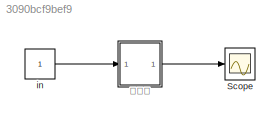
MODEL slx_3090bcf9bef9
KIND model
CONFIG AbsTol = auto
CONFIG EnableMultiTasking = off
CONFIG FixedStep = auto
CONFIG MaxStep = auto
CONFIG MinStep = auto
CONFIG RelTol = 1e-3
CONFIG SampleTimeConstraint = Unconstrained
CONFIG SolverName = VariableStepAuto
CONFIG StartTime = 0.0
CONFIG StopTime = 200
BLOCK [Scope] Scope
  Floating = off
  NumInputPorts = 1
  ScopeSpecificationString = Simulink.scopes.TimeScopeBlockCfg('CurrentConfiguration', extmgr.ConfigurationSet(extmgr.Configuration('Core','General UI',true),extmgr.Configuration('Core','Source UI',true),extmgr.Configuration('Sources','WiredSimulink',true),extmgr.Configuration('Visuals','Time Domain',true,'SerializedDisplays',{struct('MinYLimReal','-115.00000','MaxYLimReal','35.00000','YLabelReal','','MinYLimMag',' 0.00000','...<+1394ch>
BLOCK [Constant] in
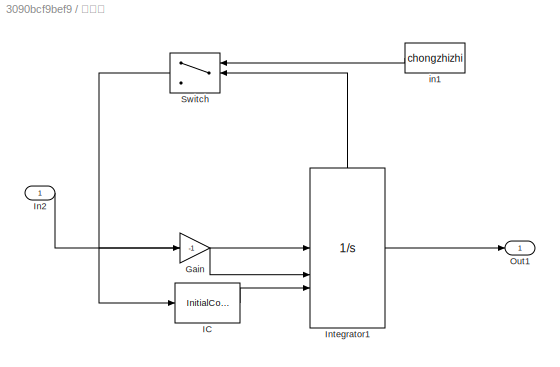
BLOCK [SubSystem] 积分器
BLOCK [Gain] 积分器/Gain
  Gain = -1
BLOCK [InitialCondition] 积分器/IC
  Value = chushizhi
BLOCK [Inport] 积分器/In2
BLOCK [Integrator] 积分器/Integrator1
  ExternalReset = rising
  InitialConditionSource = external
  ShowStatePort = on
BLOCK [Outport] 积分器/Out1
BLOCK [Switch] 积分器/Switch
  Criteria = u2 > Threshold
  InputSameDT = off
  SaturateOnIntegerOverflow = off
  Threshold = yuzhi
BLOCK [Constant] 积分器/in1
  Value = chongzhizhi
LINE in:1 -> 积分器:1
LINE 积分器/Gain:1 -> 积分器/Integrator1:2
LINE 积分器/IC:1 -> 积分器/Integrator1:3
LINE 积分器/In2:1 -> 积分器/Integrator1:1
LINE 积分器/Integrator1:1 -> 积分器/Out1:1
LINE 积分器/Integrator1:state -> 积分器/Switch:2
NET 积分器/Switch:1 -> 积分器/Gain:1, 积分器/IC:1
LINE 积分器/in1:1 -> 积分器/Switch:1
LINE 积分器:1 -> Scope:1
note: NET lines group one-source signal fan-out (src -> all destinations, sorted); 1:1 wires keep LINE
